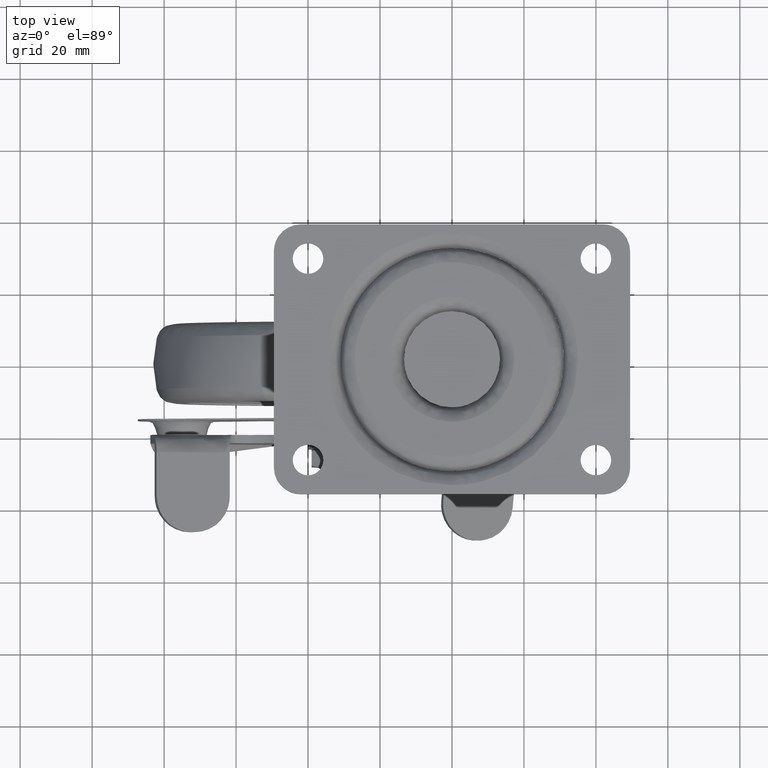
[diagram: clean part render]
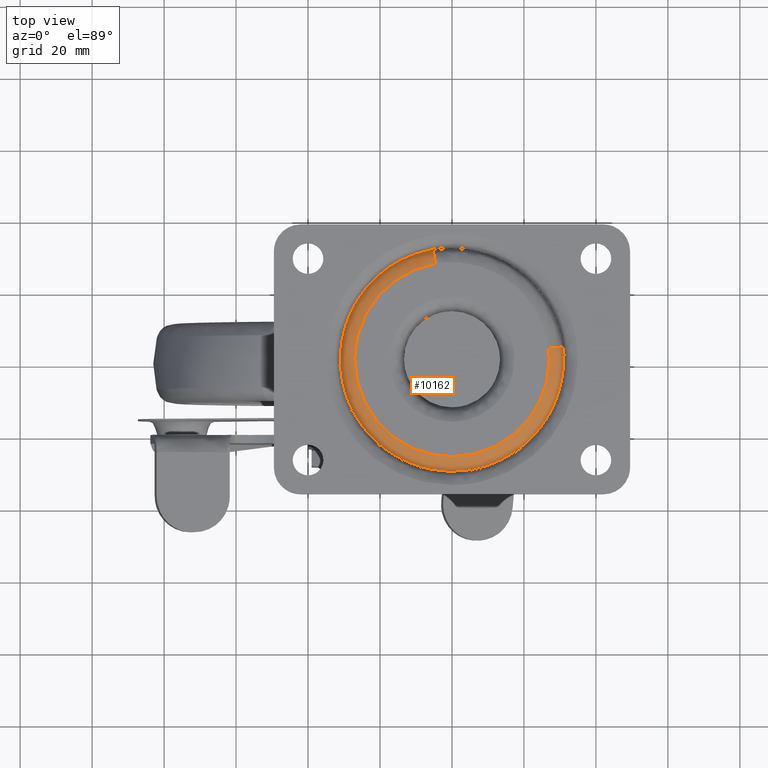
[diagram: same view with one face highlighted and labeled with its STEP entity id]
A machine part, top view. The second image highlights one B-rep face of the part: STEP entity #10162.
In plain terms, the highlighted face is a freeform B-spline surface patch.
Its self-contained STEP definition (entity closure, byte-faithful):
#9985=CARTESIAN_POINT('',(-5.258842008847637,30.576947067814974,-3.731971562725297));
#9986=CARTESIAN_POINT('',(-34.134287154002649,25.610741526864981,-3.731971562725296));
#9987=CARTESIAN_POINT('',(-30.827663389141993,-3.501468438774470,-3.731971562725297));
#9988=CARTESIAN_POINT('',(-27.326194950367508,-34.329131827916449,-3.731971562725297));
#9989=CARTESIAN_POINT('',(3.501468438774469,-30.827663389141993,-3.731971562725297));
#9990=CARTESIAN_POINT('',(34.329131827916449,-27.326194950367508,-3.731971562725297));
#9991=CARTESIAN_POINT('',(30.827663389141993,3.501468438774466,-3.731971562725297));
#9992=CARTESIAN_POINT('',(-5.213508880195046,30.313362675491213,0.250489990751934));
#9993=CARTESIAN_POINT('',(-33.840037197754988,25.389967630525781,0.250489990751934));
#9994=CARTESIAN_POINT('',(-30.561917731043202,-3.471284508749400,0.250489990751934));
#9995=CARTESIAN_POINT('',(-27.090633222293803,-34.033202239792601,0.250489990751934));
#9996=CARTESIAN_POINT('',(3.471284508749399,-30.561917731043202,0.250489990751934));
#9997=CARTESIAN_POINT('',(34.033202239792601,-27.090633222293803,0.250489990751934));
#9998=CARTESIAN_POINT('',(30.561917731043202,3.471284508749398,0.250489990751934));
#9999=CARTESIAN_POINT('',(-4.538391684395102,26.387969456638839,-0.008424471334314));
#10000=CARTESIAN_POINT('',(-29.457961412768604,22.102123657863245,-0.008424471334314));
#10001=CARTESIAN_POINT('',(-26.604338167837668,-3.021774607217786,-0.008424471334314));
#10002=CARTESIAN_POINT('',(-23.582563560619885,-29.626112775055457,-0.008424471334314));
#10003=CARTESIAN_POINT('',(3.021774607217784,-26.604338167837668,-0.008424471334314));
#10004=CARTESIAN_POINT('',(29.626112775055457,-23.582563560619885,-0.008424471334314));
#10005=CARTESIAN_POINT('',(26.604338167837668,3.021774607217781,-0.008424471334314));
#10013=(BOUNDED_SURFACE()B_SPLINE_SURFACE(2,2,((#9985,#9992,#9999),(#9986,#9993,#10000),(#9987,#9994,#10001),(#9988,#9995,#10002),(#9989,#9996,#10003),(#9990,#9997,#10004),(#9991,#9998,#10005)),.UNSPECIFIED.,.F.,.F.,.U.)B_SPLINE_SURFACE_WITH_KNOTS((3,2,2,3),(3,3),(0.0,49.349143639508071,100.754501597329000,152.159859555149890),(0.0,6.617367496289911),.UNSPECIFIED.)GEOMETRIC_REPRESENTATION_ITEM()RATIONAL_B_SPLINE_SURFACE(((0.894684501784929,0.634141879200415,0.897021240868696),(0.657918713785140,0.466325066197605,0.659637067427542),(0.915272831176216,0.648734645548485,0.917663342907057),(0.647195625560512,0.458724667057985,0.648885972615896),(0.915272831176216,0.648734645548485,0.917663342907057),(0.647195625560512,0.458724667057985,0.648885972615896),(0.915272831176216,0.648734645548485,0.917663342907057)))REPRESENTATION_ITEM('')SURFACE());
#10014=CARTESIAN_POINT('',(-4.582371518771396,26.643685268891399,-8.254689E-016));
#10015=VERTEX_POINT('',#10014);
#10016=CARTESIAN_POINT('',(-27.034868098032550,0.0,0.0));
#10017=VERTEX_POINT('',#10016);
#10018=CARTESIAN_POINT('',(-4.582371518771396,26.643685268891399,-8.254689E-016));
#10019=CARTESIAN_POINT('',(-6.914688235390249,26.243271551819578,-7.397210E-016));
#10020=CARTESIAN_POINT('',(-10.427760934468010,25.149106643130260,-6.105624E-016));
#10021=CARTESIAN_POINT('',(-15.534681947230609,22.332465016863829,-4.228058E-016));
#10022=CARTESIAN_POINT('',(-19.347104921016321,19.150901947383179,-2.826416E-016));
#10023=CARTESIAN_POINT('',(-22.367822731006591,15.359441425705320,-1.715845E-016));
#10024=CARTESIAN_POINT('',(-24.795888870132679,11.170461643219300,-8.231636E-017));
#10025=CARTESIAN_POINT('',(-26.579926261887142,6.113050169412308,-1.672600E-017));
#10026=CARTESIAN_POINT('',(-27.035181127879440,1.971972643408883,1.150858E-020));
#10027=CARTESIAN_POINT('',(-27.034868098032550,0.0,0.0));
#10028=B_SPLINE_CURVE_WITH_KNOTS('',3,(#10018,#10019,#10020,#10021,#10022,#10023,#10024,#10025,#10026,#10027),.UNSPECIFIED.,.F.,.U.,(4,1,1,1,1,1,1,4),(0.000000176162139,7.099092177678024,10.944460985083129,17.451972507011352,21.888868462423229,25.438401647048511,31.945947089199120,37.861858468997561),.UNSPECIFIED.);
#10029=EDGE_CURVE('',#10015,#10017,#10028,.T.);
#10030=ORIENTED_EDGE('',*,*,#10029,.F.);
#10031=CARTESIAN_POINT('',(-5.254455709579458,30.551443422384740,-3.472999999406312));
#10032=VERTEX_POINT('',#10031);
#10033=CARTESIAN_POINT('',(-5.254455709579458,30.551443422384740,-3.472999999406312));
#10034=CARTESIAN_POINT('',(-5.245781424254419,30.501007763235819,-3.086720029012086));
#10035=CARTESIAN_POINT('',(-5.214708203227166,30.320336004500358,-2.446000930231634));
#10036=CARTESIAN_POINT('',(-5.130176199171243,29.828834147215481,-1.586008176917574));
#10037=CARTESIAN_POINT('',(-5.018488616477939,29.179439223382140,-0.879026437132449));
#10038=CARTESIAN_POINT('',(-4.836292189034023,28.120078529219029,-0.201914190067604));
#10039=CARTESIAN_POINT('',(-4.678921162257070,27.205062343018842,0.000761725910541));
#10040=CARTESIAN_POINT('',(-4.582371518771396,26.643685268891399,-8.254689E-016));
#10041=B_SPLINE_CURVE_WITH_KNOTS('',3,(#10033,#10034,#10035,#10036,#10037,#10038,#10039,#10040),.UNSPECIFIED.,.F.,.U.,(4,1,1,1,1,4),(0.000000564757164,1.168928161395296,1.978237683415571,2.967204103632779,4.046312772498415,5.754769786963225),.UNSPECIFIED.);
#10042=EDGE_CURVE('',#10032,#10015,#10041,.T.);
#10043=ORIENTED_EDGE('',*,*,#10042,.F.);
#10044=CARTESIAN_POINT('',(-31.0,0.0,-3.472999999999950));
#10045=VERTEX_POINT('',#10044);
#10046=CARTESIAN_POINT('',(-5.254455709579458,30.551443422384740,-3.472999999406312));
#10047=CARTESIAN_POINT('',(-7.483053281297426,30.168635768374092,-3.472999999457703));
#10048=CARTESIAN_POINT('',(-10.762234033913300,29.225791824075799,-3.472999999533301));
#10049=CARTESIAN_POINT('',(-15.466154259115060,26.989215934952561,-3.472999999641786));
#10050=CARTESIAN_POINT('',(-19.153688953724082,24.541034122825270,-3.472999999726786));
#10051=CARTESIAN_POINT('',(-22.987335025455849,21.007181200671440,-3.472999999815202));
#10052=CARTESIAN_POINT('',(-25.709228719095030,17.514120516000759,-3.472999999877944));
#10053=CARTESIAN_POINT('',(-27.957803280628571,13.584043537218641,-3.472999999929823));
#10054=CARTESIAN_POINT('',(-29.480916219897690,9.919239037635768,-3.472999999964847));
#10055=CARTESIAN_POINT('',(-30.694049787277240,5.200642087046761,-3.472999999993093));
#10056=CARTESIAN_POINT('',(-31.000222869507780,1.922007725814404,-3.472999999999682));
#10057=CARTESIAN_POINT('',(-31.0,0.0,-3.472999999999950));
#10058=B_SPLINE_CURVE_WITH_KNOTS('',3,(#10046,#10047,#10048,#10049,#10050,#10051,#10052,#10053,#10054,#10055,#10056,#10057),.UNSPECIFIED.,.F.,.U.,(4,1,1,1,1,1,1,1,1,4),(0.000000128743984,6.783579969005992,10.175375083480210,15.602289551292611,20.011668412893339,25.777562898568139,28.830226754964190,33.578757626796872,37.648950928640772,43.414956130079212),.UNSPECIFIED.);
#10059=EDGE_CURVE('',#10032,#10045,#10058,.T.);
#10060=ORIENTED_EDGE('',*,*,#10059,.T.);
#10061=CARTESIAN_POINT('',(0.000003187252347,-30.999999999999829,-3.472999999999950));
#10062=VERTEX_POINT('',#10061);
#10063=CARTESIAN_POINT('',(-31.0,0.0,-3.472999999999950));
#10064=CARTESIAN_POINT('',(-31.000725309897369,-2.536273763690732,-3.472999999999956));
#10065=CARTESIAN_POINT('',(-30.561680421804439,-6.086537876436760,-3.472999999999940));
#10066=CARTESIAN_POINT('',(-28.976941466854289,-11.310906995227660,-3.472999999999970));
#10067=CARTESIAN_POINT('',(-27.042293522239198,-15.467188932915580,-3.472999999999900));
#10068=CARTESIAN_POINT('',(-23.847431850665750,-20.063255683687728,-3.472999999999983));
#10069=CARTESIAN_POINT('',(-20.333586213470848,-23.577151428613298,-3.472999999999955));
#10070=CARTESIAN_POINT('',(-16.626616318652189,-26.256231961095331,-3.472999999999922));
#10071=CARTESIAN_POINT('',(-13.064945504927550,-28.216657744478130,-3.472999999999995));
#10072=CARTESIAN_POINT('',(-9.268653130521546,-29.681035260794111,-3.472999999999933));
#10073=CARTESIAN_POINT('',(-4.818668822324234,-30.737816550256689,-3.472999999999958));
#10074=CARTESIAN_POINT('',(-1.775310805174069,-31.000150884046409,-3.472999999999943));
#10075=CARTESIAN_POINT('',(0.000003187252347,-30.999999999999829,-3.472999999999950));
#10076=B_SPLINE_CURVE_WITH_KNOTS('',3,(#10063,#10064,#10065,#10066,#10067,#10068,#10069,#10070,#10071,#10072,#10073,#10074,#10075),.UNSPECIFIED.,.F.,.U.,(4,1,1,1,1,1,1,1,1,1,4),(0.000000057099506,7.608580838507187,10.652014900149430,16.358502202811380,21.304125406218141,27.390863367923629,31.195183316423101,34.999513204307803,39.564686966403052,43.369050715984102,48.694993465528349),.UNSPECIFIED.);
#10077=EDGE_CURVE('',#10045,#10062,#10076,.T.);
#10078=ORIENTED_EDGE('',*,*,#10077,.T.);
#10079=CARTESIAN_POINT('',(31.0,0.0,-3.472999999999950));
#10080=VERTEX_POINT('',#10079);
#10081=CARTESIAN_POINT('',(0.000003187252347,-30.999999999999829,-3.472999999999950));
#10082=CARTESIAN_POINT('',(2.536254223326596,-31.000699766757819,-3.472999999999958));
#10083=CARTESIAN_POINT('',(6.720603426809267,-30.483406069771480,-3.472999999999939));
#10084=CARTESIAN_POINT('',(11.662935536886099,-28.816848990750199,-3.472999999999951));
#10085=CARTESIAN_POINT('',(15.542280802864770,-26.923422352925051,-3.472999999999976));
#10086=CARTESIAN_POINT('',(18.834645363068510,-24.752685187762140,-3.472999999999880));
#10087=CARTESIAN_POINT('',(22.165758691625051,-21.807088536384772,-3.473000000000021));
#10088=CARTESIAN_POINT('',(25.155778649200400,-18.341069878214871,-3.472999999999896));
#10089=CARTESIAN_POINT('',(27.425841435822829,-14.656852233741910,-3.472999999999967));
#10090=CARTESIAN_POINT('',(29.175117877759401,-10.710401267365880,-3.472999999999949));
#10091=CARTESIAN_POINT('',(30.577818373337308,-6.086657972467219,-3.472999999999942));
#10092=CARTESIAN_POINT('',(31.000464743443999,-2.282590533417848,-3.472999999999955));
#10093=CARTESIAN_POINT('',(31.0,0.0,-3.472999999999950));
#10094=B_SPLINE_CURVE_WITH_KNOTS('',3,(#10081,#10082,#10083,#10084,#10085,#10086,#10087,#10088,#10089,#10090,#10091,#10092,#10093),.UNSPECIFIED.,.F.,.U.,(4,1,1,1,1,1,1,1,1,1,4),(0.000000058191858,7.608580277739243,12.554181702716701,15.597626005759849,20.543271970602031,24.347494953098181,28.912572752400710,34.238651677790592,37.282109720932169,41.847303812799822,48.694989872729643),.UNSPECIFIED.);
#10095=EDGE_CURVE('',#10062,#10080,#10094,.T.);
#10096=ORIENTED_EDGE('',*,*,#10095,.T.);
#10097=CARTESIAN_POINT('',(30.801950626047638,3.498547931191550,-3.472999999553572));
#10098=VERTEX_POINT('',#10097);
#10099=CARTESIAN_POINT('',(31.0,0.0,-3.472999999999950));
#10100=CARTESIAN_POINT('',(31.000015118692140,1.168672319221477,-3.472999999999990));
#10101=CARTESIAN_POINT('',(30.933862667314280,2.337344281123243,-3.472999999850879));
#10102=CARTESIAN_POINT('',(30.801950626047638,3.498547931191550,-3.472999999553572));
#10103=B_SPLINE_CURVE_WITH_KNOTS('',3,(#10099,#10100,#10101,#10102),.UNSPECIFIED.,.F.,.U.,(4,4),(8.451129E-010,3.506024700441586),.UNSPECIFIED.);
#10104=EDGE_CURVE('',#10080,#10098,#10103,.T.);
#10105=ORIENTED_EDGE('',*,*,#10104,.T.);
#10106=CARTESIAN_POINT('',(26.862150735155161,3.051057481887566,-8.069007E-016));
#10107=VERTEX_POINT('',#10106);
#10108=CARTESIAN_POINT('',(30.801950626047638,3.498547931191550,-3.472999999553572));
#10109=CARTESIAN_POINT('',(30.758829380269141,3.493650132757007,-3.146191227846250));
#10110=CARTESIAN_POINT('',(30.569081963938430,3.472098236946249,-2.415622574100844));
#10111=CARTESIAN_POINT('',(29.952531657139261,3.402069204608417,-1.372418618043667));
#10112=CARTESIAN_POINT('',(29.080541407214330,3.303026786331238,-0.621186678559320));
#10113=CARTESIAN_POINT('',(28.023406264332181,3.182955236245208,-0.122642997508497));
#10114=CARTESIAN_POINT('',(27.308904490979440,3.101800678074077,0.000308321452917));
#10115=CARTESIAN_POINT('',(26.862150735155161,3.051057481887566,-8.069007E-016));
#10116=B_SPLINE_CURVE_WITH_KNOTS('',3,(#10108,#10109,#10110,#10111,#10112,#10113,#10114,#10115),.UNSPECIFIED.,.F.,.U.,(4,1,1,1,1,4),(0.000000564756944,0.989087303441242,2.248021198636695,3.596722112128602,4.406001964817930,5.754769777519975),.UNSPECIFIED.);
#10117=EDGE_CURVE('',#10098,#10107,#10116,.T.);
#10118=ORIENTED_EDGE('',*,*,#10117,.T.);
#10119=CARTESIAN_POINT('',(27.034868098032550,0.0,0.0));
#10120=VERTEX_POINT('',#10119);
#10121=CARTESIAN_POINT('',(27.034868098032550,0.0,0.0));
#10122=CARTESIAN_POINT('',(27.034880958173520,1.019191396340674,6.007998E-020));
#10123=CARTESIAN_POINT('',(26.977190457415730,2.038378947498414,-2.694583E-016));
#10124=CARTESIAN_POINT('',(26.862150735155161,3.051057481887566,-8.069007E-016));
#10125=B_SPLINE_CURVE_WITH_KNOTS('',3,(#10121,#10122,#10123,#10124),.UNSPECIFIED.,.F.,.U.,(4,4),(7.369789E-010,3.057577915313218),.UNSPECIFIED.);
#10126=EDGE_CURVE('',#10120,#10107,#10125,.T.);
#10127=ORIENTED_EDGE('',*,*,#10126,.F.);
#10128=CARTESIAN_POINT('',(0.000003383458080,-27.034868098032341,0.0));
#10129=VERTEX_POINT('',#10128);
#10130=CARTESIAN_POINT('',(0.000003383458080,-27.034868098032341,0.0));
#10131=CARTESIAN_POINT('',(1.437638779122317,-27.034940514938459,0.0));
#10132=CARTESIAN_POINT('',(4.423532819728787,-26.796182142669519,0.0));
#10133=CARTESIAN_POINT('',(9.161156660414239,-25.609710608349442,0.0));
#10134=CARTESIAN_POINT('',(13.596666454824479,-23.545069863793682,0.0));
#10135=CARTESIAN_POINT('',(17.389568338970712,-20.838541284828761,0.0));
#10136=CARTESIAN_POINT('',(20.167367881028010,-18.128060705257049,0.0));
#10137=CARTESIAN_POINT('',(22.553164920757840,-15.070941522058719,0.0));
#10138=CARTESIAN_POINT('',(24.819755318453868,-11.127197459449111,0.0));
#10139=CARTESIAN_POINT('',(26.593316935676409,-5.971728583984415,0.0));
#10140=CARTESIAN_POINT('',(27.035161580017551,-1.990612067906176,0.0));
#10141=CARTESIAN_POINT('',(27.034868098032550,0.0,0.0));
#10142=B_SPLINE_CURVE_WITH_KNOTS('',3,(#10130,#10131,#10132,#10133,#10134,#10135,#10136,#10137,#10138,#10139,#10140,#10141),.UNSPECIFIED.,.F.,.U.,(4,1,1,1,1,1,1,1,1,4),(0.000000142418131,4.312935074906008,8.957784788760414,14.597876039507300,18.910969390914691,22.892013103580741,26.209746997411852,30.522821357744132,36.494709922738757,42.466536054619972),.UNSPECIFIED.);
#10143=EDGE_CURVE('',#10129,#10120,#10142,.T.);
#10144=ORIENTED_EDGE('',*,*,#10143,.F.);
#10145=CARTESIAN_POINT('',(-27.034868098032550,0.0,0.0));
#10146=CARTESIAN_POINT('',(-27.035195091885829,-1.880039858357530,0.0));
#10147=CARTESIAN_POINT('',(-26.745194216280542,-4.644604634000682,0.0));
#10148=CARTESIAN_POINT('',(-25.503868284127009,-9.355682199221009,0.0));
#10149=CARTESIAN_POINT('',(-23.674082554490411,-13.416080803543149,0.0));
#10150=CARTESIAN_POINT('',(-20.838512876206291,-17.389556265885879,0.0));
#10151=CARTESIAN_POINT('',(-17.973193133133059,-20.326134298509999,0.0));
#10152=CARTESIAN_POINT('',(-14.884436133260300,-22.676113315393771,0.0));
#10153=CARTESIAN_POINT('',(-10.819995968760320,-24.946288675840780,0.0));
#10154=CARTESIAN_POINT('',(-5.861201036726516,-26.618157402448549,0.0));
#10155=CARTESIAN_POINT('',(-1.879998263569587,-27.035067445171151,0.0));
#10156=CARTESIAN_POINT('',(0.000003383458080,-27.034868098032341,0.0));
#10157=B_SPLINE_CURVE_WITH_KNOTS('',3,(#10145,#10146,#10147,#10148,#10149,#10150,#10151,#10152,#10153,#10154,#10155,#10156),.UNSPECIFIED.,.F.,.U.,(4,1,1,1,1,1,1,1,1,4),(0.000000141242808,5.640057039873227,8.294226385599139,14.597877348882580,18.910971089168768,22.892015159398301,26.873309356950351,30.522824098091299,36.826500507582239,42.466539868589713),.UNSPECIFIED.);
#10158=EDGE_CURVE('',#10017,#10129,#10157,.T.);
#10159=ORIENTED_EDGE('',*,*,#10158,.F.);
#10160=EDGE_LOOP('',(#10030,#10043,#10060,#10078,#10096,#10105,#10118,#10127,#10144,#10159));
#10161=FACE_OUTER_BOUND('',#10160,.T.);
#10162=ADVANCED_FACE('',(#10161),#10013,.T.);